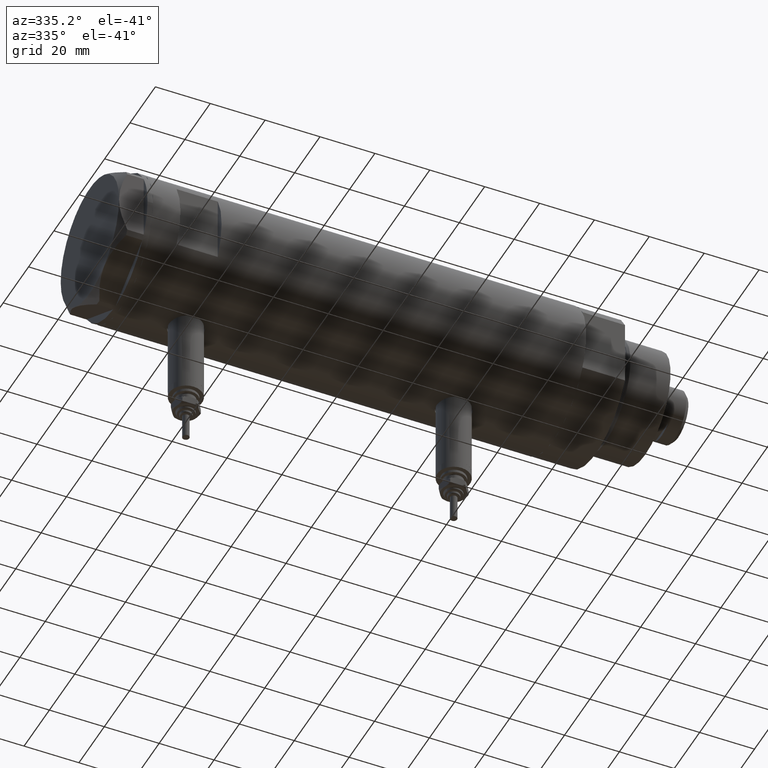
[diagram: clean part render]
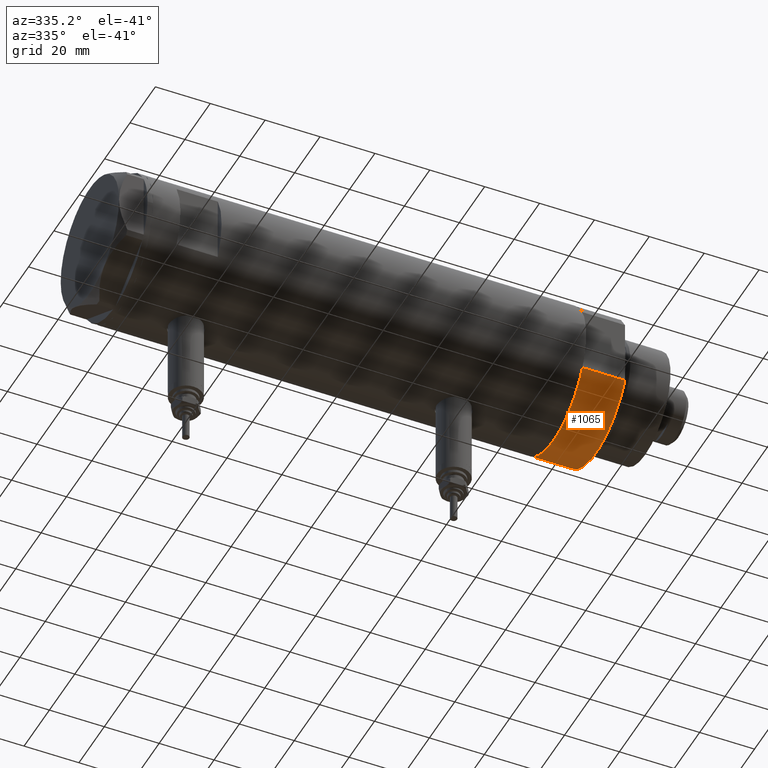
[diagram: same view with one face highlighted and labeled with its STEP entity id]
A machine part, auxiliary view. The second image highlights one B-rep face of the part: STEP entity #1065.
In plain terms, the highlighted cylindrical surface (partial cylindrical patch) has radius 26 mm, axis along (-1, -0, 0).
Its self-contained STEP definition (entity closure, byte-faithful):
#118 = EDGE_CURVE ( 'NONE', #5910, #1315, #458, .T. ) ;
#446 = LINE ( 'NONE', #5811, #4795 ) ;
#458 = CIRCLE ( 'NONE', #4042, 26.00000000000000355 ) ;
#467 = AXIS2_PLACEMENT_3D ( 'NONE', #5887, #6087, #1488 ) ;
#588 = VERTEX_POINT ( 'NONE', #6152 ) ;
#695 = CYLINDRICAL_SURFACE ( 'NONE', #6302, 26.00000000000000355 ) ;
#739 = CARTESIAN_POINT ( 'NONE',  ( 0.000000000000000000, 0.000000000000000000, 0.000000000000000000 ) ) ;
#1023 = EDGE_CURVE ( 'NONE', #5910, #4361, #2493, .T. ) ;
#1065 = ADVANCED_FACE ( 'NONE', ( #6110 ), #695, .T. ) ;
#1113 = ORIENTED_EDGE ( 'NONE', *, *, #1023, .F. ) ;
#1315 = VERTEX_POINT ( 'NONE', #1731 ) ;
#1379 = DIRECTION ( 'NONE',  ( -0.000000000000000000, -0.000000000000000000, 1.000000000000000000 ) ) ;
#1390 = ORIENTED_EDGE ( 'NONE', *, *, #118, .T. ) ;
#1488 = DIRECTION ( 'NONE',  ( 1.000000000000000000, 0.000000000000000000, 0.000000000000000000 ) ) ;
#1533 = EDGE_CURVE ( 'NONE', #1315, #588, #446, .T. ) ;
#1731 = CARTESIAN_POINT ( 'NONE',  ( 12.12435565298214080, 23.00000000000000355, 0.000000000000000000 ) ) ;
#1856 = CARTESIAN_POINT ( 'NONE',  ( 12.12435565298215323, -22.99999999999999645, 15.50000000000000000 ) ) ;
#2060 = ORIENTED_EDGE ( 'NONE', *, *, #2458, .F. ) ;
#2458 = EDGE_CURVE ( 'NONE', #4361, #588, #6299, .T. ) ;
#2493 = LINE ( 'NONE', #5460, #4991 ) ;
#2586 = DIRECTION ( 'NONE',  ( -1.000000000000000000, 0.000000000000000000, 0.000000000000000000 ) ) ;
#2652 = CARTESIAN_POINT ( 'NONE',  ( 0.000000000000000000, 0.000000000000000000, 15.50000000000000000 ) ) ;
#2692 = DIRECTION ( 'NONE',  ( 0.000000000000000000, 0.000000000000000000, 1.000000000000000000 ) ) ;
#2695 = EDGE_LOOP ( 'NONE', ( #2060, #1113, #1390, #3283 ) ) ;
#3283 = ORIENTED_EDGE ( 'NONE', *, *, #1533, .T. ) ;
#3708 = DIRECTION ( 'NONE',  ( -0.000000000000000000, -0.000000000000000000, -1.000000000000000000 ) ) ;
#4042 = AXIS2_PLACEMENT_3D ( 'NONE', #739, #2692, #5214 ) ;
#4361 = VERTEX_POINT ( 'NONE', #1856 ) ;
#4795 = VECTOR ( 'NONE', #1379, 1000.000000000000000 ) ;
#4991 = VECTOR ( 'NONE', #6145, 1000.000000000000000 ) ;
#5214 = DIRECTION ( 'NONE',  ( 1.000000000000000000, 0.000000000000000000, 0.000000000000000000 ) ) ;
#5460 = CARTESIAN_POINT ( 'NONE',  ( 12.12435565298215323, -22.99999999999999645, 0.000000000000000000 ) ) ;
#5768 = CARTESIAN_POINT ( 'NONE',  ( 12.12435565298215323, -22.99999999999999645, 0.000000000000000000 ) ) ;
#5811 = CARTESIAN_POINT ( 'NONE',  ( 12.12435565298215323, 23.00000000000000355, 0.000000000000000000 ) ) ;
#5887 = CARTESIAN_POINT ( 'NONE',  ( 0.000000000000000000, 0.000000000000000000, 15.50000000000000000 ) ) ;
#5910 = VERTEX_POINT ( 'NONE', #5768 ) ;
#6087 = DIRECTION ( 'NONE',  ( 0.000000000000000000, 0.000000000000000000, 1.000000000000000000 ) ) ;
#6110 = FACE_OUTER_BOUND ( 'NONE', #2695, .T. ) ;
#6145 = DIRECTION ( 'NONE',  ( -0.000000000000000000, -0.000000000000000000, 1.000000000000000000 ) ) ;
#6152 = CARTESIAN_POINT ( 'NONE',  ( 12.12435565298214790, 23.00000000000000355, 15.50000000000000000 ) ) ;
#6299 = CIRCLE ( 'NONE', #467, 26.00000000000000355 ) ;
#6302 = AXIS2_PLACEMENT_3D ( 'NONE', #2652, #3708, #2586 ) ;